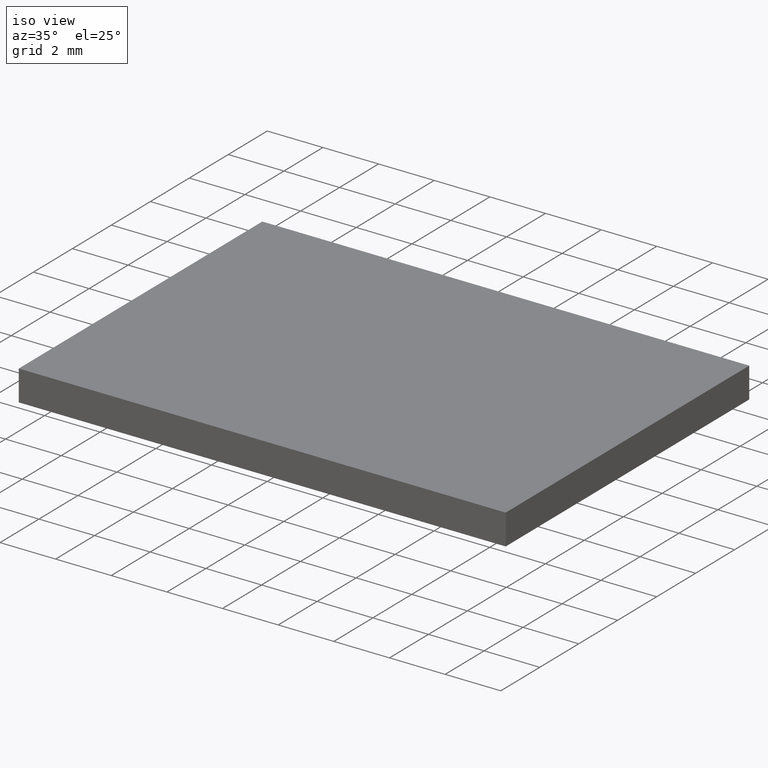
[diagram: clean part render]
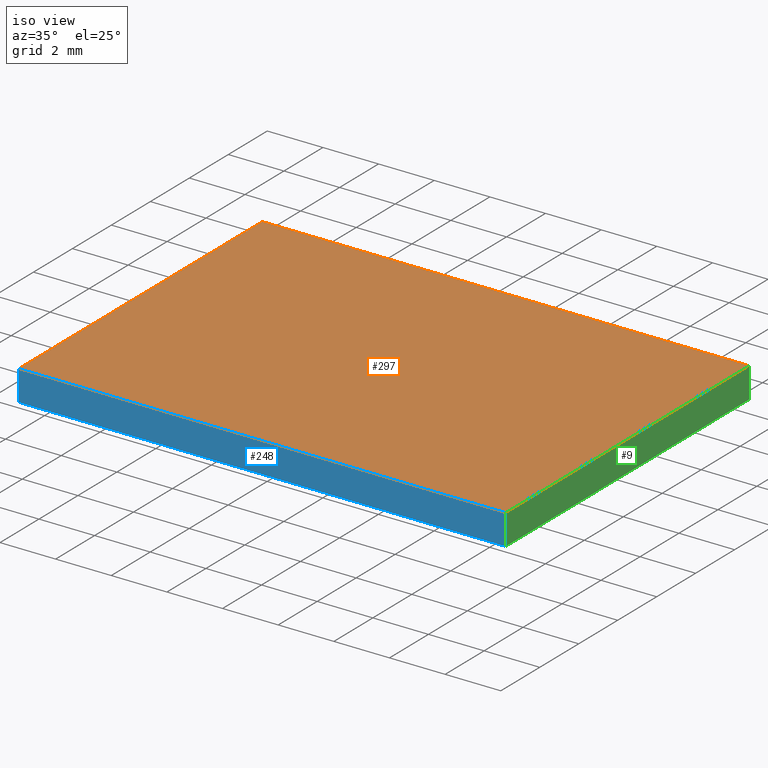
[diagram: same view with three faces highlighted in distinct colors, each labeled with its STEP entity id]
A machine part, iso view with three faces highlighted in distinct colors.
Their STEP definitions:

[orange] entity #297 — the highlighted planar face has unit normal (0, 0, -1).
#19 = DIRECTION ( 'NONE',  ( 0.0000000000000000000, 0.0000000000000000000, -1.000000000000000000 ) ) ;
#20 = CARTESIAN_POINT ( 'NONE',  ( 8.750000000000000000, -6.249999999999999100, 1.100000000000000100 ) ) ;
#30 = DIRECTION ( 'NONE',  ( -1.000000000000000000, -0.0000000000000000000, -0.0000000000000000000 ) ) ;
#63 = LINE ( 'NONE', #78, #126 ) ;
#64 = DIRECTION ( 'NONE',  ( 1.000000000000000000, 0.0000000000000000000, 0.0000000000000000000 ) ) ;
#66 = EDGE_CURVE ( 'NONE', #249, #173, #63, .T. ) ;
#78 = CARTESIAN_POINT ( 'NONE',  ( -8.750000000000000000, 6.250000000000000900, 1.100000000000000100 ) ) ;
#84 = ORIENTED_EDGE ( 'NONE', *, *, #66, .T. ) ;
#86 = EDGE_CURVE ( 'NONE', #173, #101, #267, .T. ) ;
#101 = VERTEX_POINT ( 'NONE', #244 ) ;
#110 = DIRECTION ( 'NONE',  ( 0.0000000000000000000, 1.000000000000000000, 0.0000000000000000000 ) ) ;
#114 = ORIENTED_EDGE ( 'NONE', *, *, #86, .T. ) ;
#115 = DIRECTION ( 'NONE',  ( -1.000000000000000000, 0.0000000000000000000, -0.0000000000000000000 ) ) ;
#116 = CARTESIAN_POINT ( 'NONE',  ( -8.750000000000000000, -6.249999999999999100, 1.100000000000000100 ) ) ;
#126 = VECTOR ( 'NONE', #30, 1000.000000000000000 ) ;
#129 = LINE ( 'NONE', #135, #157 ) ;
#135 = CARTESIAN_POINT ( 'NONE',  ( -8.750000000000000000, -6.249999999999999100, 1.100000000000000100 ) ) ;
#150 = EDGE_LOOP ( 'NONE', ( #213, #84, #114, #262 ) ) ;
#157 = VECTOR ( 'NONE', #64, 1000.000000000000000 ) ;
#165 = VERTEX_POINT ( 'NONE', #20 ) ;
#173 = VERTEX_POINT ( 'NONE', #307 ) ;
#181 = CARTESIAN_POINT ( 'NONE',  ( 8.750000000000000000, 6.250000000000000900, 1.100000000000000100 ) ) ;
#208 = FACE_OUTER_BOUND ( 'NONE', #150, .T. ) ;
#213 = ORIENTED_EDGE ( 'NONE', *, *, #229, .T. ) ;
#225 = LINE ( 'NONE', #251, #273 ) ;
#229 = EDGE_CURVE ( 'NONE', #165, #249, #225, .T. ) ;
#244 = CARTESIAN_POINT ( 'NONE',  ( -8.750000000000000000, -6.249999999999999100, 1.100000000000000100 ) ) ;
#249 = VERTEX_POINT ( 'NONE', #181 ) ;
#251 = CARTESIAN_POINT ( 'NONE',  ( 8.750000000000000000, -6.249999999999999100, 1.100000000000000100 ) ) ;
#252 = PLANE ( 'NONE',  #301 ) ;
#262 = ORIENTED_EDGE ( 'NONE', *, *, #279, .T. ) ;
#267 = LINE ( 'NONE', #116, #311 ) ;
#273 = VECTOR ( 'NONE', #110, 1000.000000000000000 ) ;
#275 = DIRECTION ( 'NONE',  ( -0.0000000000000000000, -1.000000000000000000, -0.0000000000000000000 ) ) ;
#279 = EDGE_CURVE ( 'NONE', #101, #165, #129, .T. ) ;
#297 = ADVANCED_FACE ( 'NONE', ( #208 ), #252, .F. ) ;
#301 = AXIS2_PLACEMENT_3D ( 'NONE', #304, #19, #115 ) ;
#304 = CARTESIAN_POINT ( 'NONE',  ( 0.0000000000000000000, 0.0000000000000000000, 1.100000000000000100 ) ) ;
#307 = CARTESIAN_POINT ( 'NONE',  ( -8.750000000000000000, 6.250000000000000900, 1.100000000000000100 ) ) ;
#311 = VECTOR ( 'NONE', #275, 1000.000000000000000 ) ;

[blue] entity #248 — the highlighted planar face has unit normal (0, 1, 0).
#11 = CARTESIAN_POINT ( 'NONE',  ( -8.750000000000000000, -6.249999999999999100, 0.0000000000000000000 ) ) ;
#20 = CARTESIAN_POINT ( 'NONE',  ( 8.750000000000000000, -6.249999999999999100, 1.100000000000000100 ) ) ;
#22 = VERTEX_POINT ( 'NONE', #11 ) ;
#25 = VECTOR ( 'NONE', #280, 1000.000000000000000 ) ;
#33 = VECTOR ( 'NONE', #161, 1000.000000000000000 ) ;
#40 = DIRECTION ( 'NONE',  ( 1.000000000000000000, 0.0000000000000000000, 0.0000000000000000000 ) ) ;
#48 = ORIENTED_EDGE ( 'NONE', *, *, #124, .F. ) ;
#56 = EDGE_CURVE ( 'NONE', #22, #99, #220, .T. ) ;
#64 = DIRECTION ( 'NONE',  ( 1.000000000000000000, 0.0000000000000000000, 0.0000000000000000000 ) ) ;
#83 = CARTESIAN_POINT ( 'NONE',  ( -8.750000000000000000, -6.249999999999999100, 1.100000000000000100 ) ) ;
#90 = ORIENTED_EDGE ( 'NONE', *, *, #56, .T. ) ;
#91 = CARTESIAN_POINT ( 'NONE',  ( 8.750000000000000000, -6.249999999999999100, 0.0000000000000000000 ) ) ;
#95 = LINE ( 'NONE', #138, #33 ) ;
#99 = VERTEX_POINT ( 'NONE', #91 ) ;
#101 = VERTEX_POINT ( 'NONE', #244 ) ;
#124 = EDGE_CURVE ( 'NONE', #165, #99, #131, .T. ) ;
#129 = LINE ( 'NONE', #135, #157 ) ;
#131 = LINE ( 'NONE', #253, #25 ) ;
#132 = CARTESIAN_POINT ( 'NONE',  ( -8.750000000000000000, -6.249999999999999100, 0.0000000000000000000 ) ) ;
#135 = CARTESIAN_POINT ( 'NONE',  ( -8.750000000000000000, -6.249999999999999100, 1.100000000000000100 ) ) ;
#138 = CARTESIAN_POINT ( 'NONE',  ( -8.750000000000000000, -6.249999999999999100, 1.100000000000000100 ) ) ;
#153 = EDGE_CURVE ( 'NONE', #101, #22, #95, .T. ) ;
#157 = VECTOR ( 'NONE', #64, 1000.000000000000000 ) ;
#161 = DIRECTION ( 'NONE',  ( -0.0000000000000000000, -0.0000000000000000000, -1.000000000000000000 ) ) ;
#165 = VERTEX_POINT ( 'NONE', #20 ) ;
#186 = VECTOR ( 'NONE', #40, 1000.000000000000000 ) ;
#197 = FACE_OUTER_BOUND ( 'NONE', #198, .T. ) ;
#198 = EDGE_LOOP ( 'NONE', ( #90, #48, #238, #268 ) ) ;
#206 = DIRECTION ( 'NONE',  ( 0.0000000000000000000, -0.0000000000000000000, 1.000000000000000000 ) ) ;
#220 = LINE ( 'NONE', #132, #186 ) ;
#238 = ORIENTED_EDGE ( 'NONE', *, *, #279, .F. ) ;
#244 = CARTESIAN_POINT ( 'NONE',  ( -8.750000000000000000, -6.249999999999999100, 1.100000000000000100 ) ) ;
#248 = ADVANCED_FACE ( 'NONE', ( #197 ), #277, .F. ) ;
#253 = CARTESIAN_POINT ( 'NONE',  ( 8.750000000000000000, -6.249999999999999100, 1.100000000000000100 ) ) ;
#268 = ORIENTED_EDGE ( 'NONE', *, *, #153, .T. ) ;
#277 = PLANE ( 'NONE',  #294 ) ;
#279 = EDGE_CURVE ( 'NONE', #101, #165, #129, .T. ) ;
#280 = DIRECTION ( 'NONE',  ( -0.0000000000000000000, -0.0000000000000000000, -1.000000000000000000 ) ) ;
#294 = AXIS2_PLACEMENT_3D ( 'NONE', #83, #309, #206 ) ;
#309 = DIRECTION ( 'NONE',  ( 0.0000000000000000000, 1.000000000000000000, 0.0000000000000000000 ) ) ;

[green] entity #9 — the highlighted planar face has unit normal (-1, 0, 0).
#9 = ADVANCED_FACE ( 'NONE', ( #265 ), #219, .F. ) ;
#13 = DIRECTION ( 'NONE',  ( 0.0000000000000000000, 1.000000000000000000, 0.0000000000000000000 ) ) ;
#18 = ORIENTED_EDGE ( 'NONE', *, *, #124, .T. ) ;
#20 = CARTESIAN_POINT ( 'NONE',  ( 8.750000000000000000, -6.249999999999999100, 1.100000000000000100 ) ) ;
#25 = VECTOR ( 'NONE', #280, 1000.000000000000000 ) ;
#39 = DIRECTION ( 'NONE',  ( -1.000000000000000000, 0.0000000000000000000, 0.0000000000000000000 ) ) ;
#46 = EDGE_CURVE ( 'NONE', #99, #296, #201, .T. ) ;
#61 = CARTESIAN_POINT ( 'NONE',  ( 8.750000000000000000, -6.249999999999999100, 0.0000000000000000000 ) ) ;
#70 = EDGE_CURVE ( 'NONE', #249, #296, #236, .T. ) ;
#91 = CARTESIAN_POINT ( 'NONE',  ( 8.750000000000000000, -6.249999999999999100, 0.0000000000000000000 ) ) ;
#99 = VERTEX_POINT ( 'NONE', #91 ) ;
#105 = EDGE_LOOP ( 'NONE', ( #134, #223, #160, #18 ) ) ;
#109 = DIRECTION ( 'NONE',  ( -0.0000000000000000000, -0.0000000000000000000, -1.000000000000000000 ) ) ;
#110 = DIRECTION ( 'NONE',  ( 0.0000000000000000000, 1.000000000000000000, 0.0000000000000000000 ) ) ;
#124 = EDGE_CURVE ( 'NONE', #165, #99, #131, .T. ) ;
#127 = CARTESIAN_POINT ( 'NONE',  ( 8.750000000000000000, -6.249999999999999100, 1.100000000000000100 ) ) ;
#131 = LINE ( 'NONE', #253, #25 ) ;
#134 = ORIENTED_EDGE ( 'NONE', *, *, #46, .T. ) ;
#139 = VECTOR ( 'NONE', #13, 1000.000000000000000 ) ;
#154 = DIRECTION ( 'NONE',  ( 0.0000000000000000000, 0.0000000000000000000, 1.000000000000000000 ) ) ;
#158 = VECTOR ( 'NONE', #109, 1000.000000000000000 ) ;
#160 = ORIENTED_EDGE ( 'NONE', *, *, #229, .F. ) ;
#165 = VERTEX_POINT ( 'NONE', #20 ) ;
#181 = CARTESIAN_POINT ( 'NONE',  ( 8.750000000000000000, 6.250000000000000900, 1.100000000000000100 ) ) ;
#201 = LINE ( 'NONE', #61, #139 ) ;
#204 = CARTESIAN_POINT ( 'NONE',  ( 8.750000000000000000, 6.250000000000000900, 0.0000000000000000000 ) ) ;
#219 = PLANE ( 'NONE',  #298 ) ;
#223 = ORIENTED_EDGE ( 'NONE', *, *, #70, .F. ) ;
#225 = LINE ( 'NONE', #251, #273 ) ;
#229 = EDGE_CURVE ( 'NONE', #165, #249, #225, .T. ) ;
#236 = LINE ( 'NONE', #245, #158 ) ;
#245 = CARTESIAN_POINT ( 'NONE',  ( 8.750000000000000000, 6.250000000000000900, 1.100000000000000100 ) ) ;
#249 = VERTEX_POINT ( 'NONE', #181 ) ;
#251 = CARTESIAN_POINT ( 'NONE',  ( 8.750000000000000000, -6.249999999999999100, 1.100000000000000100 ) ) ;
#253 = CARTESIAN_POINT ( 'NONE',  ( 8.750000000000000000, -6.249999999999999100, 1.100000000000000100 ) ) ;
#265 = FACE_OUTER_BOUND ( 'NONE', #105, .T. ) ;
#273 = VECTOR ( 'NONE', #110, 1000.000000000000000 ) ;
#280 = DIRECTION ( 'NONE',  ( -0.0000000000000000000, -0.0000000000000000000, -1.000000000000000000 ) ) ;
#296 = VERTEX_POINT ( 'NONE', #204 ) ;
#298 = AXIS2_PLACEMENT_3D ( 'NONE', #127, #39, #154 ) ;